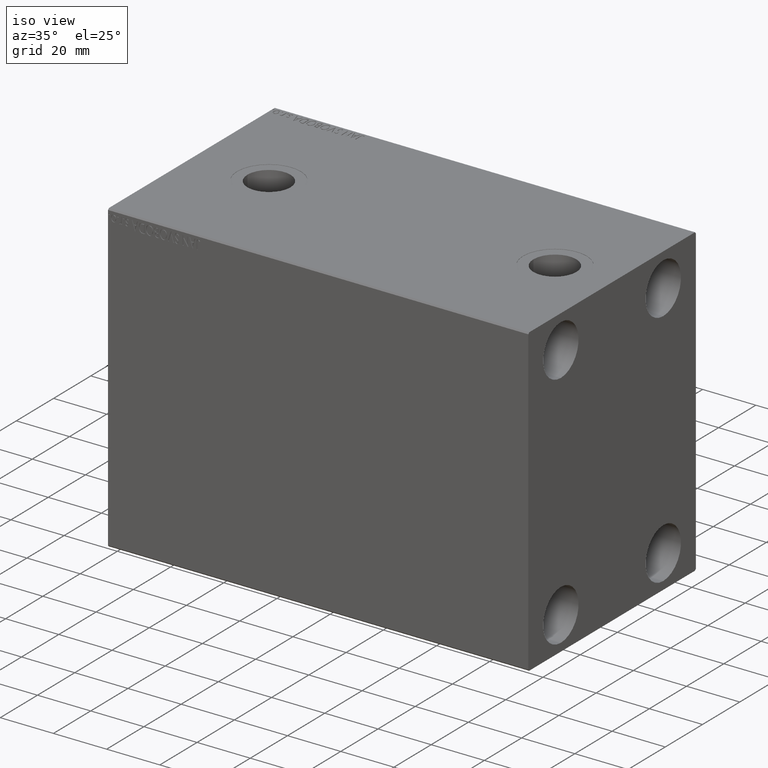
[diagram: clean part render]
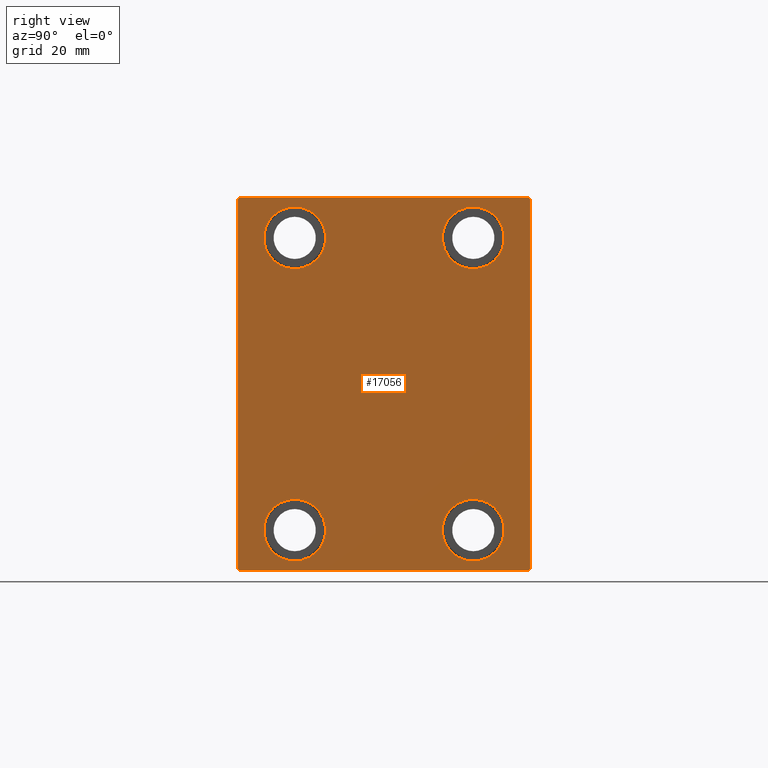
[diagram: tour spotlight — one face highlighted and labeled with its STEP entity id]
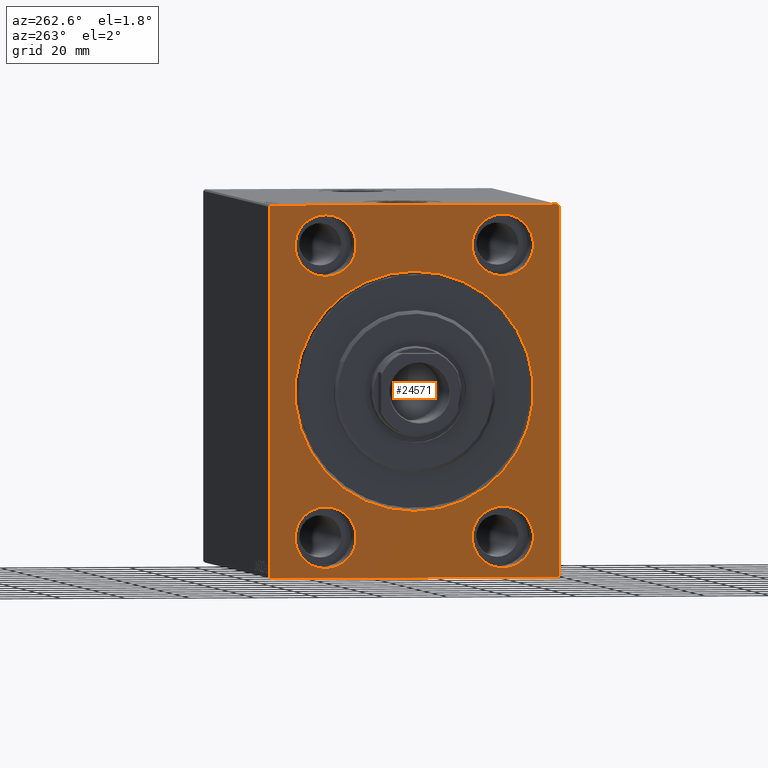
[diagram: tour spotlight — one face highlighted and labeled with its STEP entity id]
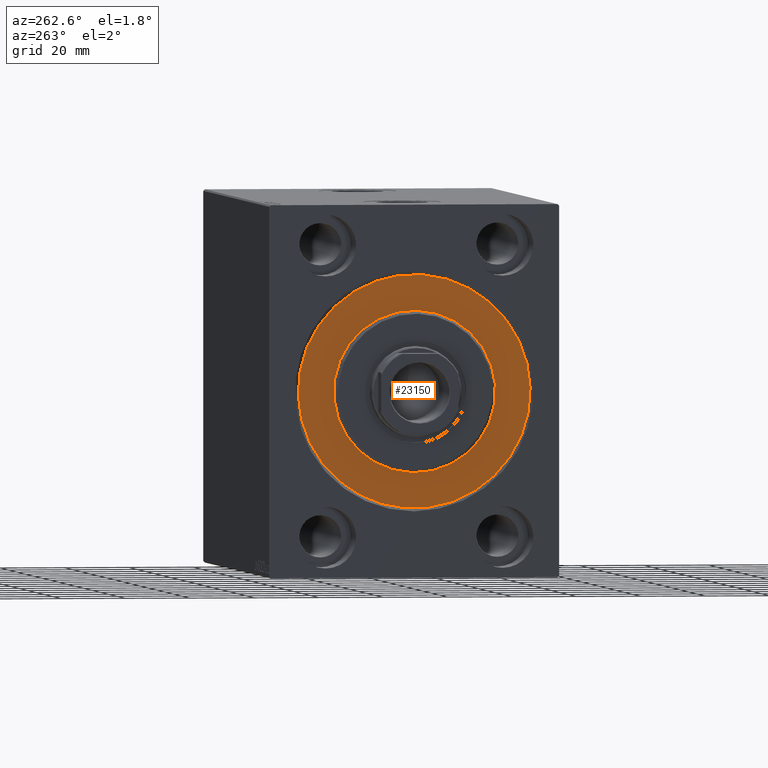
[diagram: tour spotlight — one face highlighted and labeled with its STEP entity id]
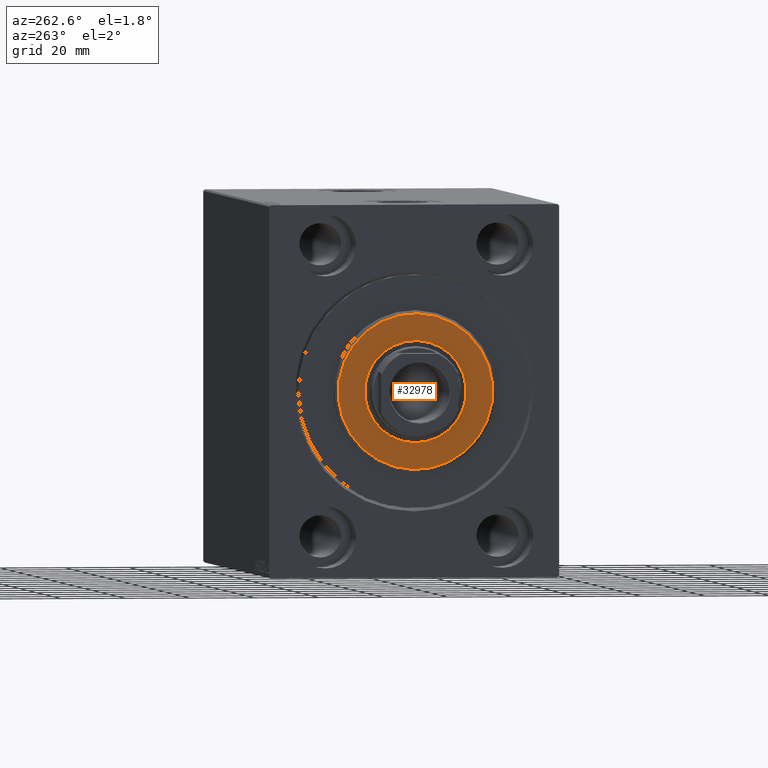
[diagram: tour spotlight — one face highlighted and labeled with its STEP entity id]
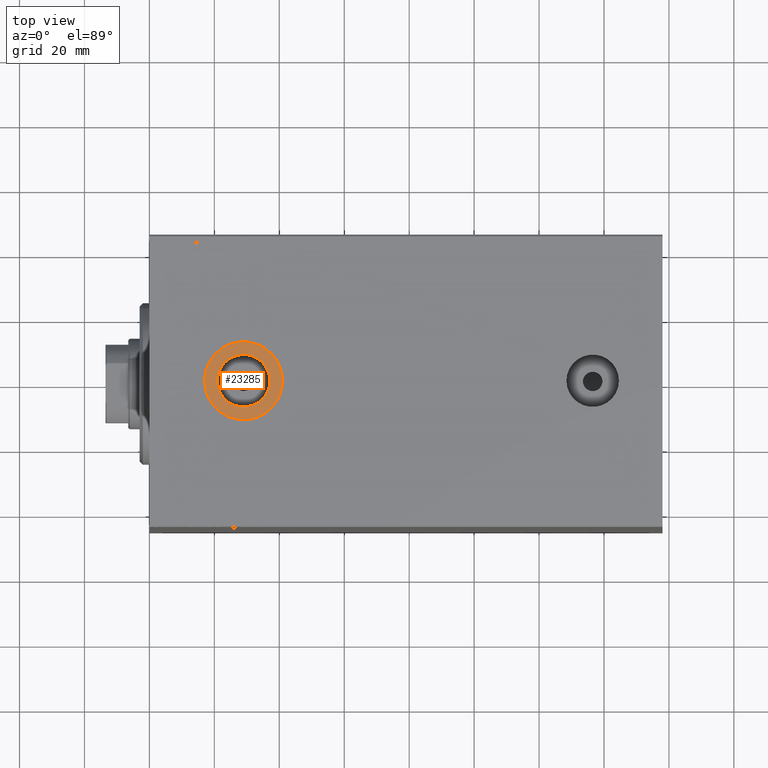
[diagram: tour spotlight — one face highlighted and labeled with its STEP entity id]
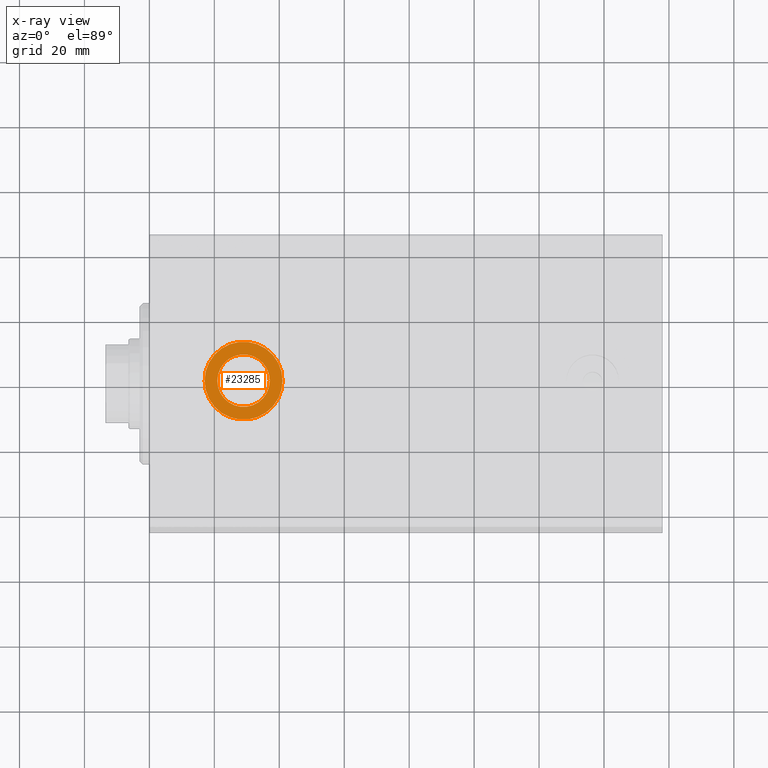
[diagram: x-ray of the same camera — body ghosted, this tour face saturated]
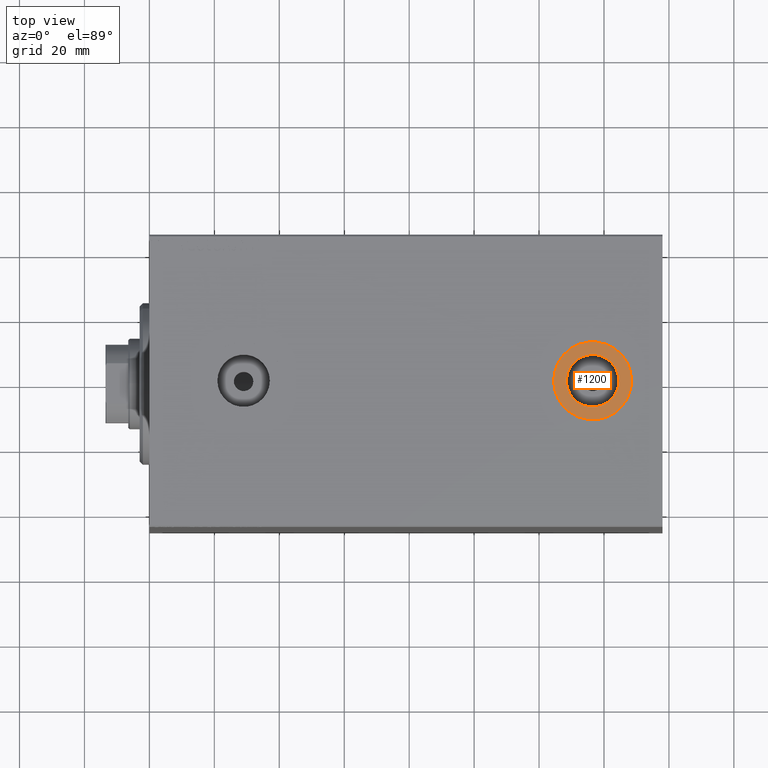
[diagram: tour spotlight — one face highlighted and labeled with its STEP entity id]
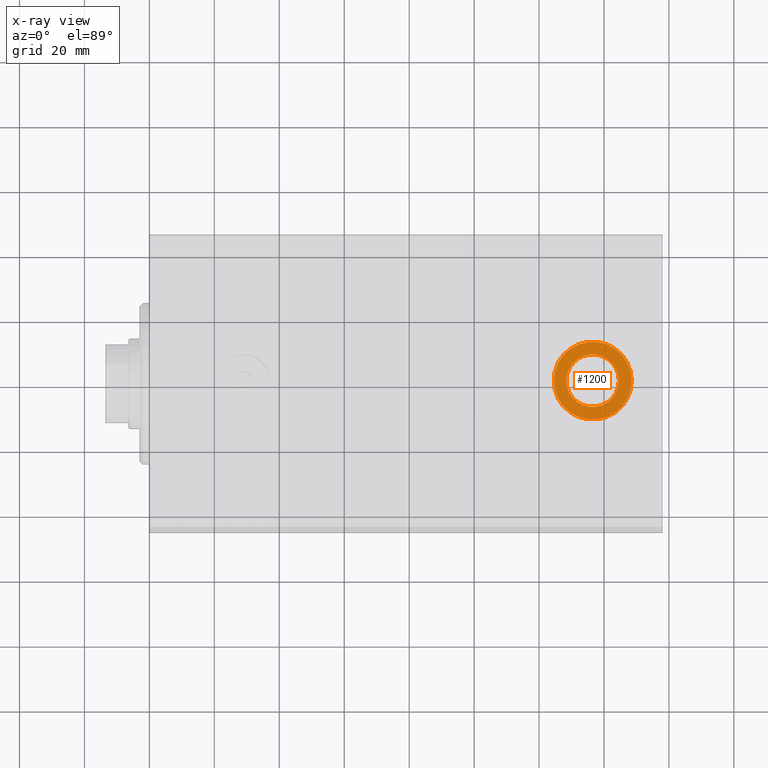
[diagram: x-ray of the same camera — body ghosted, this tour face saturated]
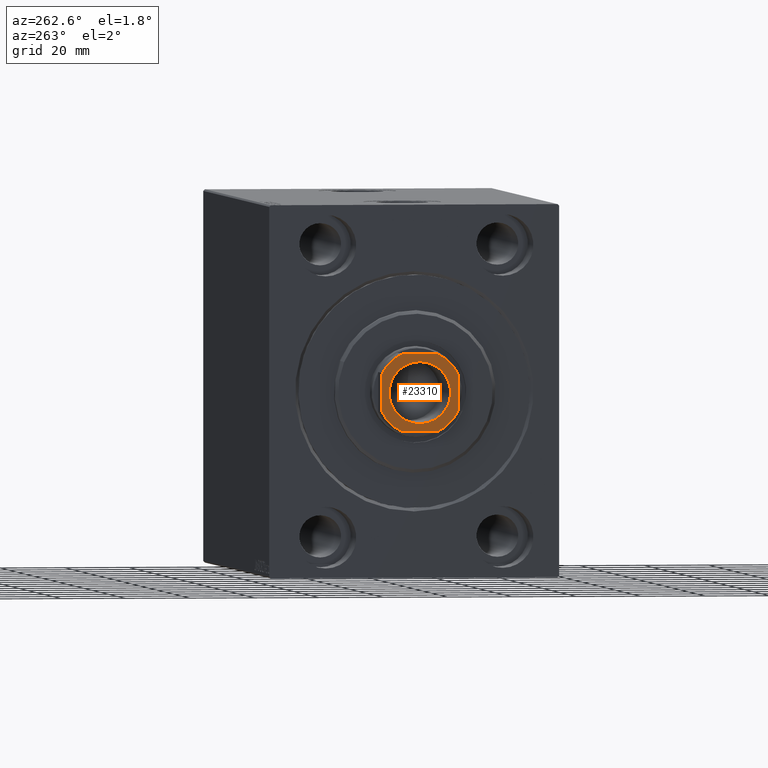
[diagram: tour spotlight — one face highlighted and labeled with its STEP entity id]
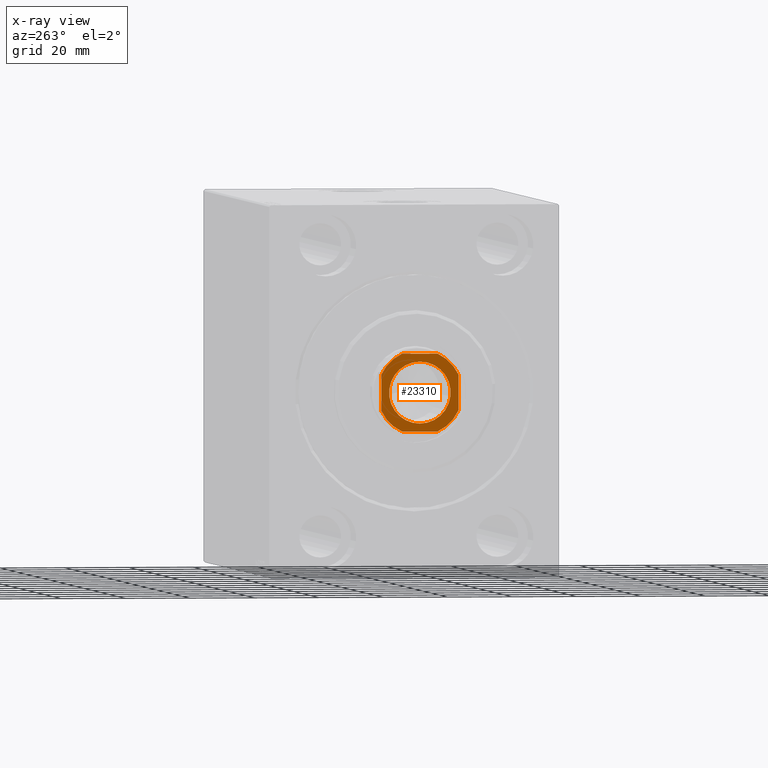
[diagram: x-ray of the same camera — body ghosted, this tour face saturated]
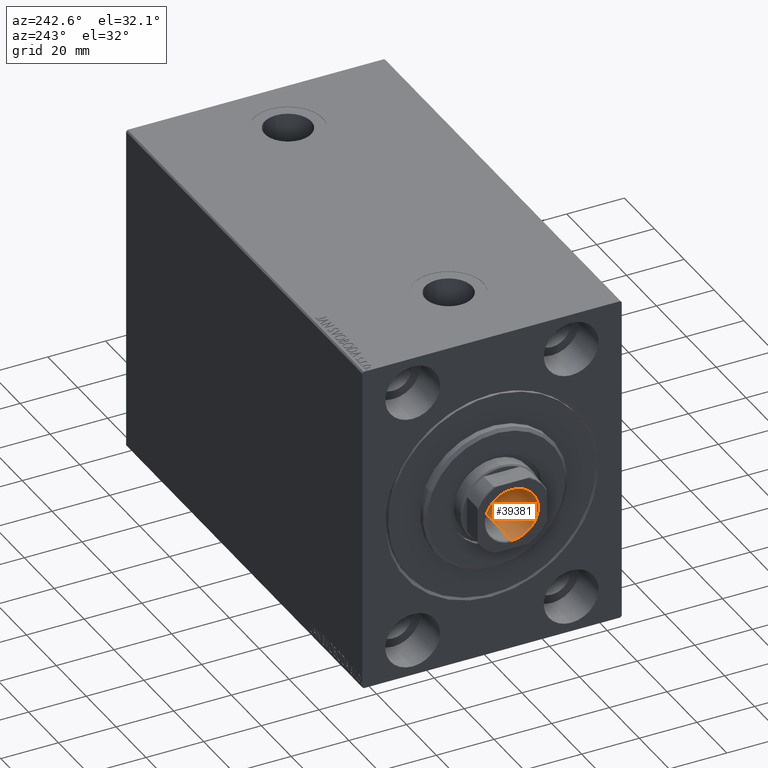
[diagram: tour spotlight — one face highlighted and labeled with its STEP entity id]
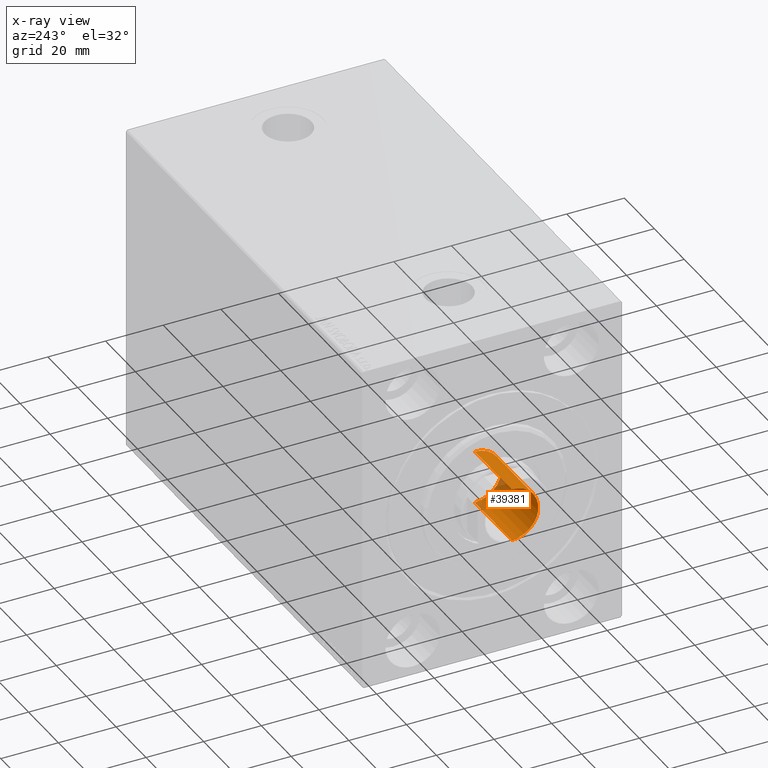
[diagram: x-ray of the same camera — body ghosted, this tour face saturated]
A machine part: a face-by-face anatomy tour. The part has 865 B-rep faces; the first image is the clean iso view, then the 8 largest visible faces are spotlighted one at a time (largest first), each with its STEP entity span.

Face 1 — right view, entity #17056. In plain terms, the highlighted planar face has unit normal (1, 0, 0).
Definition (entity closure, byte-faithful):
#109 = ORIENTED_EDGE ( 'NONE', *, *, #5401, .T. ) ;
#148 = FACE_BOUND ( 'NONE', #16474, .T. ) ;
#354 = CARTESIAN_POINT ( 'NONE',  ( 158.0000000000000000, 27.50000000000001066, 45.00000000000000711 ) ) ;
#840 = EDGE_LOOP ( 'NONE', ( #3613, #1363 ) ) ;
#1238 = EDGE_CURVE ( 'NONE', #10425, #37832, #36989, .T. ) ;
#1363 = ORIENTED_EDGE ( 'NONE', *, *, #34322, .T. ) ;
#1521 = CARTESIAN_POINT ( 'NONE',  ( 158.0000000000000000, -45.00000000000000000, -57.00000000000003553 ) ) ;
#2093 = VECTOR ( 'NONE', #6140, 1000.000000000000000 ) ;
#2180 = VERTEX_POINT ( 'NONE', #9171 ) ;
#3132 = ORIENTED_EDGE ( 'NONE', *, *, #36552, .T. ) ;
#3238 = CARTESIAN_POINT ( 'NONE',  ( 158.0000000000000000, -27.50000000000000000, -35.49999999999998579 ) ) ;
#3507 = ORIENTED_EDGE ( 'NONE', *, *, #18317, .T. ) ;
#3613 = ORIENTED_EDGE ( 'NONE', *, *, #40003, .T. ) ;
#3767 = EDGE_LOOP ( 'NONE', ( #31214, #3132 ) ) ;
#4545 = VERTEX_POINT ( 'NONE', #37495 ) ;
#4620 = CARTESIAN_POINT ( 'NONE',  ( 158.0000000000000000, 45.00000000000001421, -57.00000000000003553 ) ) ;
#4719 = DIRECTION ( 'NONE',  ( 0.000000000000000000, 0.000000000000000000, 1.000000000000000000 ) ) ;
#4842 = DIRECTION ( 'NONE',  ( -1.000000000000000000, -0.000000000000000000, -0.000000000000000000 ) ) ;
#4902 = CARTESIAN_POINT ( 'NONE',  ( 158.0000000000000000, -27.49999999999998934, 54.50000000000000711 ) ) ;
#4906 = ORIENTED_EDGE ( 'NONE', *, *, #13753, .T. ) ;
#5401 = EDGE_CURVE ( 'NONE', #10711, #41412, #28113, .T. ) ;
#5426 = LINE ( 'NONE', #19006, #29251 ) ;
#5538 = DIRECTION ( 'NONE',  ( 0.000000000000000000, -1.000000000000000000, -1.541976423090495387E-16 ) ) ;
#6140 = DIRECTION ( 'NONE',  ( 0.000000000000000000, -1.206764157201257045E-16, 1.000000000000000000 ) ) ;
#6153 = LINE ( 'NONE', #15762, #33019 ) ;
#6868 = CIRCLE ( 'NONE', #42482, 9.500000000000001776 ) ;
#6895 = CARTESIAN_POINT ( 'NONE',  ( 158.0000000000000000, 51.00000000000001421, -51.00000000000001421 ) ) ;
#7192 = CIRCLE ( 'NONE', #32803, 9.500000000000001776 ) ;
#7691 = DIRECTION ( 'NONE',  ( 0.000000000000000000, 0.000000000000000000, 1.000000000000000000 ) ) ;
#7845 = ORIENTED_EDGE ( 'NONE', *, *, #41501, .T. ) ;
#8668 = CARTESIAN_POINT ( 'NONE',  ( 158.0000000000000000, 27.49999999999998934, -44.99999999999998579 ) ) ;
#8807 = ORIENTED_EDGE ( 'NONE', *, *, #29869, .T. ) ;
#9001 = LINE ( 'NONE', #43546, #36276 ) ;
#9171 = CARTESIAN_POINT ( 'NONE',  ( 158.0000000000000000, 27.50000000000001066, 54.50000000000000711 ) ) ;
#9255 = CARTESIAN_POINT ( 'NONE',  ( 158.0000000000000000, -27.50000000000000000, -54.49999999999998579 ) ) ;
#9631 = ORIENTED_EDGE ( 'NONE', *, *, #13057, .T. ) ;
#9732 = EDGE_CURVE ( 'NONE', #24713, #30417, #14244, .T. ) ;
#10425 = VERTEX_POINT ( 'NONE', #17408 ) ;
#10711 = VERTEX_POINT ( 'NONE', #11768 ) ;
#11054 = FACE_OUTER_BOUND ( 'NONE', #13987, .T. ) ;
#11768 = CARTESIAN_POINT ( 'NONE',  ( 158.0000000000000000, 45.00000000000000000, 57.00000000000000711 ) ) ;
#12143 = CARTESIAN_POINT ( 'NONE',  ( 158.0000000000000000, -45.00000000000000000, 56.99999999999999289 ) ) ;
#12697 = VECTOR ( 'NONE', #5538, 1000.000000000000000 ) ;
#12767 = AXIS2_PLACEMENT_3D ( 'NONE', #35245, #42174, #4719 ) ;
#13057 = EDGE_CURVE ( 'NONE', #30417, #24713, #7192, .T. ) ;
#13558 = VERTEX_POINT ( 'NONE', #12143 ) ;
#13742 = DIRECTION ( 'NONE',  ( 1.000000000000000000, 0.000000000000000000, 0.000000000000000000 ) ) ;
#13753 = EDGE_CURVE ( 'NONE', #25191, #18896, #42103, .T. ) ;
#13887 = DIRECTION ( 'NONE',  ( -1.000000000000000000, -0.000000000000000000, -0.000000000000000000 ) ) ;
#13987 = EDGE_LOOP ( 'NONE', ( #16926, #41186, #29539, #3507, #7845, #35230, #25381, #109 ) ) ;
#14002 = DIRECTION ( 'NONE',  ( 0.000000000000000000, 0.000000000000000000, 1.000000000000000000 ) ) ;
#14244 = CIRCLE ( 'NONE', #42737, 9.500000000000001776 ) ;
#15515 = CARTESIAN_POINT ( 'NONE',  ( 158.0000000000000000, 27.49999999999998934, -44.99999999999998579 ) ) ;
#15674 = CIRCLE ( 'NONE', #41281, 9.500000000000001776 ) ;
#15762 = CARTESIAN_POINT ( 'NONE',  ( 158.0000000000000000, -45.00000000000000000, 57.49999999999999289 ) ) ;
#15970 = CARTESIAN_POINT ( 'NONE',  ( 158.0000000000000000, 45.00000000000001421, -57.50000000000000711 ) ) ;
#16474 = EDGE_LOOP ( 'NONE', ( #8807, #4906 ) ) ;
#16782 = CARTESIAN_POINT ( 'NONE',  ( 158.0000000000000000, -27.50000000000000000, -44.99999999999998579 ) ) ;
#16926 = ORIENTED_EDGE ( 'NONE', *, *, #39031, .T. ) ;
#16955 = CIRCLE ( 'NONE', #37615, 9.500000000000001776 ) ;
#17056 = ADVANCED_FACE ( 'NONE', ( #20410, #30666, #41599, #148, #11054 ), #20867, .T. ) ;
#17167 = AXIS2_PLACEMENT_3D ( 'NONE', #16782, #13887, #24139 ) ;
#17408 = CARTESIAN_POINT ( 'NONE',  ( 158.0000000000000000, 44.50000000000001421, -57.50000000000000711 ) ) ;
#17558 = CARTESIAN_POINT ( 'NONE',  ( 158.0000000000000000, -27.49999999999998934, 45.00000000000000711 ) ) ;
#17990 = CARTESIAN_POINT ( 'NONE',  ( 158.0000000000000000, -27.49999999999998934, 45.00000000000000711 ) ) ;
#18317 = EDGE_CURVE ( 'NONE', #26903, #23725, #23173, .T. ) ;
#18896 = VERTEX_POINT ( 'NONE', #9255 ) ;
#19006 = CARTESIAN_POINT ( 'NONE',  ( 158.0000000000000000, -51.00000000000000000, 51.00000000000000000 ) ) ;
#20410 = FACE_BOUND ( 'NONE', #3767, .T. ) ;
#20731 = ORIENTED_EDGE ( 'NONE', *, *, #9732, .T. ) ;
#20867 = PLANE ( 'NONE',  #25794 ) ;
#21703 = DIRECTION ( 'NONE',  ( -0.000000000000000000, 0.7071067811865474617, -0.7071067811865474617 ) ) ;
#21886 = VECTOR ( 'NONE', #26935, 1000.000000000000114 ) ;
#22044 = CARTESIAN_POINT ( 'NONE',  ( 158.0000000000000000, -44.50000000000002842, -57.50000000000000711 ) ) ;
#22776 = VERTEX_POINT ( 'NONE', #32281 ) ;
#23173 = LINE ( 'NONE', #36561, #34986 ) ;
#23725 = VERTEX_POINT ( 'NONE', #22044 ) ;
#24139 = DIRECTION ( 'NONE',  ( 0.000000000000000000, 0.000000000000000000, 1.000000000000000000 ) ) ;
#24430 = CARTESIAN_POINT ( 'NONE',  ( 158.0000000000000000, 0.000000000000000000, 0.000000000000000000 ) ) ;
#24661 = DIRECTION ( 'NONE',  ( 0.000000000000000000, 0.000000000000000000, 1.000000000000000000 ) ) ;
#24713 = VERTEX_POINT ( 'NONE', #4902 ) ;
#25104 = EDGE_CURVE ( 'NONE', #13558, #26903, #6153, .T. ) ;
#25191 = VERTEX_POINT ( 'NONE', #3238 ) ;
#25381 = ORIENTED_EDGE ( 'NONE', *, *, #37063, .T. ) ;
#25793 = DIRECTION ( 'NONE',  ( -1.000000000000000000, -0.000000000000000000, -0.000000000000000000 ) ) ;
#25794 = AXIS2_PLACEMENT_3D ( 'NONE', #24430, #13742, #40939 ) ;
#25913 = CARTESIAN_POINT ( 'NONE',  ( 158.0000000000000000, -27.49999999999998934, 35.50000000000000711 ) ) ;
#26903 = VERTEX_POINT ( 'NONE', #1521 ) ;
#26935 = DIRECTION ( 'NONE',  ( -0.000000000000000000, 0.7071067811865474617, 0.7071067811865474617 ) ) ;
#27340 = VERTEX_POINT ( 'NONE', #32828 ) ;
#27580 = DIRECTION ( 'NONE',  ( -1.000000000000000000, -0.000000000000000000, -0.000000000000000000 ) ) ;
#27746 = DIRECTION ( 'NONE',  ( -1.000000000000000000, -0.000000000000000000, -0.000000000000000000 ) ) ;
#28113 = LINE ( 'NONE', #34146, #35504 ) ;
#28722 = DIRECTION ( 'NONE',  ( 0.000000000000000000, 0.000000000000000000, 1.000000000000000000 ) ) ;
#29251 = VECTOR ( 'NONE', #32595, 1000.000000000000114 ) ;
#29335 = DIRECTION ( 'NONE',  ( 0.000000000000000000, 0.000000000000000000, -1.000000000000000000 ) ) ;
#29539 = ORIENTED_EDGE ( 'NONE', *, *, #25104, .T. ) ;
#29561 = DIRECTION ( 'NONE',  ( 0.000000000000000000, 0.000000000000000000, 1.000000000000000000 ) ) ;
#29869 = EDGE_CURVE ( 'NONE', #18896, #25191, #6868, .T. ) ;
#30417 = VERTEX_POINT ( 'NONE', #25913 ) ;
#30507 = EDGE_CURVE ( 'NONE', #4545, #13558, #5426, .T. ) ;
#30666 = FACE_BOUND ( 'NONE', #32473, .T. ) ;
#31214 = ORIENTED_EDGE ( 'NONE', *, *, #43491, .T. ) ;
#32281 = CARTESIAN_POINT ( 'NONE',  ( 158.0000000000000000, 27.50000000000001066, 35.50000000000000711 ) ) ;
#32291 = DIRECTION ( 'NONE',  ( -1.000000000000000000, -0.000000000000000000, -0.000000000000000000 ) ) ;
#32473 = EDGE_LOOP ( 'NONE', ( #9631, #20731 ) ) ;
#32595 = DIRECTION ( 'NONE',  ( 0.000000000000000000, -0.7071067811865474617, -0.7071067811865474617 ) ) ;
#32673 = LINE ( 'NONE', #15970, #2093 ) ;
#32696 = CARTESIAN_POINT ( 'NONE',  ( 158.0000000000000000, -27.50000000000000000, -44.99999999999998579 ) ) ;
#32803 = AXIS2_PLACEMENT_3D ( 'NONE', #17990, #4842, #41845 ) ;
#32828 = CARTESIAN_POINT ( 'NONE',  ( 158.0000000000000000, 27.49999999999998934, -35.49999999999998579 ) ) ;
#33019 = VECTOR ( 'NONE', #29335, 1000.000000000000000 ) ;
#33148 = LINE ( 'NONE', #43191, #12697 ) ;
#33989 = CIRCLE ( 'NONE', #35546, 9.500000000000001776 ) ;
#34146 = CARTESIAN_POINT ( 'NONE',  ( 158.0000000000000000, 51.00000000000001421, 51.00000000000001421 ) ) ;
#34322 = EDGE_CURVE ( 'NONE', #2180, #22776, #16955, .T. ) ;
#34684 = CARTESIAN_POINT ( 'NONE',  ( 158.0000000000000000, 44.50000000000002842, 57.50000000000000711 ) ) ;
#34986 = VECTOR ( 'NONE', #21703, 1000.000000000000114 ) ;
#35230 = ORIENTED_EDGE ( 'NONE', *, *, #1238, .T. ) ;
#35245 = CARTESIAN_POINT ( 'NONE',  ( 158.0000000000000000, 27.50000000000001066, 45.00000000000000711 ) ) ;
#35504 = VECTOR ( 'NONE', #37503, 1000.000000000000114 ) ;
#35546 = AXIS2_PLACEMENT_3D ( 'NONE', #8668, #32291, #28722 ) ;
#35860 = CARTESIAN_POINT ( 'NONE',  ( 158.0000000000000000, 27.49999999999998934, -54.49999999999998579 ) ) ;
#36276 = VECTOR ( 'NONE', #43327, 1000.000000000000000 ) ;
#36552 = EDGE_CURVE ( 'NONE', #27340, #43161, #33989, .T. ) ;
#36561 = CARTESIAN_POINT ( 'NONE',  ( 158.0000000000000000, -51.00000000000001421, -51.00000000000001421 ) ) ;
#36936 = CIRCLE ( 'NONE', #12767, 9.500000000000001776 ) ;
#36989 = LINE ( 'NONE', #6895, #21886 ) ;
#37063 = EDGE_CURVE ( 'NONE', #37832, #10711, #32673, .T. ) ;
#37495 = CARTESIAN_POINT ( 'NONE',  ( 158.0000000000000000, -44.49999999999997158, 57.49999999999999289 ) ) ;
#37503 = DIRECTION ( 'NONE',  ( -0.000000000000000000, -0.7071067811865474617, 0.7071067811865474617 ) ) ;
#37615 = AXIS2_PLACEMENT_3D ( 'NONE', #354, #27746, #7691 ) ;
#37832 = VERTEX_POINT ( 'NONE', #4620 ) ;
#39031 = EDGE_CURVE ( 'NONE', #41412, #4545, #33148, .T. ) ;
#40003 = EDGE_CURVE ( 'NONE', #22776, #2180, #36936, .T. ) ;
#40939 = DIRECTION ( 'NONE',  ( 0.000000000000000000, 0.000000000000000000, -1.000000000000000000 ) ) ;
#41186 = ORIENTED_EDGE ( 'NONE', *, *, #30507, .T. ) ;
#41281 = AXIS2_PLACEMENT_3D ( 'NONE', #15515, #41616, #24661 ) ;
#41412 = VERTEX_POINT ( 'NONE', #34684 ) ;
#41501 = EDGE_CURVE ( 'NONE', #23725, #10425, #9001, .T. ) ;
#41599 = FACE_BOUND ( 'NONE', #840, .T. ) ;
#41616 = DIRECTION ( 'NONE',  ( -1.000000000000000000, -0.000000000000000000, -0.000000000000000000 ) ) ;
#41845 = DIRECTION ( 'NONE',  ( 0.000000000000000000, 0.000000000000000000, 1.000000000000000000 ) ) ;
#42103 = CIRCLE ( 'NONE', #17167, 9.500000000000001776 ) ;
#42174 = DIRECTION ( 'NONE',  ( -1.000000000000000000, -0.000000000000000000, -0.000000000000000000 ) ) ;
#42482 = AXIS2_PLACEMENT_3D ( 'NONE', #32696, #25793, #29561 ) ;
#42737 = AXIS2_PLACEMENT_3D ( 'NONE', #17558, #27580, #14002 ) ;
#43161 = VERTEX_POINT ( 'NONE', #35860 ) ;
#43191 = CARTESIAN_POINT ( 'NONE',  ( 158.0000000000000000, 45.00000000000000000, 57.50000000000000711 ) ) ;
#43327 = DIRECTION ( 'NONE',  ( 0.000000000000000000, 1.000000000000000000, 0.000000000000000000 ) ) ;
#43491 = EDGE_CURVE ( 'NONE', #43161, #27340, #15674, .T. ) ;
#43546 = CARTESIAN_POINT ( 'NONE',  ( 158.0000000000000000, -45.00000000000000000, -57.50000000000000711 ) ) ;

Face 2 — auxiliary view, entity #24571. In plain terms, the highlighted planar face has unit normal (1, 0, 0).
Definition (entity closure, byte-faithful):
#147 = VECTOR ( 'NONE', #24982, 1000.000000000000000 ) ;
#218 = CIRCLE ( 'NONE', #32155, 9.500000000000001776 ) ;
#650 = DIRECTION ( 'NONE',  ( -0.000000000000000000, 0.7071067811865474617, 0.7071067811865474617 ) ) ;
#675 = FACE_OUTER_BOUND ( 'NONE', #21264, .T. ) ;
#855 = DIRECTION ( 'NONE',  ( 0.000000000000000000, 0.000000000000000000, -1.000000000000000000 ) ) ;
#953 = VECTOR ( 'NONE', #650, 1000.000000000000114 ) ;
#1277 = VERTEX_POINT ( 'NONE', #24937 ) ;
#1579 = DIRECTION ( 'NONE',  ( 0.000000000000000000, 0.000000000000000000, 1.000000000000000000 ) ) ;
#1654 = AXIS2_PLACEMENT_3D ( 'NONE', #42329, #35852, #11998 ) ;
#1723 = ORIENTED_EDGE ( 'NONE', *, *, #15812, .F. ) ;
#2326 = AXIS2_PLACEMENT_3D ( 'NONE', #8932, #18753, #25420 ) ;
#2434 = DIRECTION ( 'NONE',  ( -1.000000000000000000, 0.000000000000000000, 0.000000000000000000 ) ) ;
#3424 = CARTESIAN_POINT ( 'NONE',  ( 0.000000000000000000, -45.00000000000000000, -57.50000000000000711 ) ) ;
#3721 = AXIS2_PLACEMENT_3D ( 'NONE', #27704, #30607, #30380 ) ;
#3773 = EDGE_CURVE ( 'NONE', #31141, #40479, #12688, .T. ) ;
#4239 = FACE_BOUND ( 'NONE', #34076, .T. ) ;
#4331 = LINE ( 'NONE', #7233, #37599 ) ;
#4367 = EDGE_CURVE ( 'NONE', #17715, #1277, #4331, .T. ) ;
#4462 = VERTEX_POINT ( 'NONE', #23032 ) ;
#4468 = DIRECTION ( 'NONE',  ( 1.000000000000000000, 0.000000000000000000, 0.000000000000000000 ) ) ;
#4486 = CARTESIAN_POINT ( 'NONE',  ( 0.000000000000000000, 27.50000000000001066, 45.00000000000000711 ) ) ;
#5150 = LINE ( 'NONE', #24752, #147 ) ;
#5168 = CIRCLE ( 'NONE', #3721, 37.00000000000003553 ) ;
#5544 = VECTOR ( 'NONE', #6656, 1000.000000000000000 ) ;
#5861 = CIRCLE ( 'NONE', #36451, 9.500000000000001776 ) ;
#6313 = ORIENTED_EDGE ( 'NONE', *, *, #9811, .T. ) ;
#6357 = VECTOR ( 'NONE', #38332, 1000.000000000000114 ) ;
#6656 = DIRECTION ( 'NONE',  ( 0.000000000000000000, -1.206764157201257045E-16, 1.000000000000000000 ) ) ;
#6777 = CARTESIAN_POINT ( 'NONE',  ( 0.000000000000000000, -45.00000000000000000, 56.99999999999999289 ) ) ;
#7233 = CARTESIAN_POINT ( 'NONE',  ( 0.000000000000000000, -44.50000000000002842, -57.50000000000000711 ) ) ;
#7238 = CARTESIAN_POINT ( 'NONE',  ( 0.000000000000000000, 27.49999999999998934, -44.99999999999998579 ) ) ;
#7563 = CARTESIAN_POINT ( 'NONE',  ( 0.000000000000000000, 27.49999999999998934, -54.49999999999998579 ) ) ;
#7721 = CARTESIAN_POINT ( 'NONE',  ( 0.000000000000000000, -27.50000000000000000, -35.49999999999998579 ) ) ;
#7798 = DIRECTION ( 'NONE',  ( 0.000000000000000000, 0.000000000000000000, -1.000000000000000000 ) ) ;
#8073 = AXIS2_PLACEMENT_3D ( 'NONE', #9982, #2434, #29600 ) ;
#8195 = DIRECTION ( 'NONE',  ( -1.000000000000000000, 0.000000000000000000, 0.000000000000000000 ) ) ;
#8199 = ORIENTED_EDGE ( 'NONE', *, *, #21145, .F. ) ;
#8372 = EDGE_LOOP ( 'NONE', ( #1723, #16695 ) ) ;
#8488 = CARTESIAN_POINT ( 'NONE',  ( 0.000000000000000000, 27.50000000000001066, 35.50000000000000711 ) ) ;
#8932 = CARTESIAN_POINT ( 'NONE',  ( 0.000000000000000000, 27.50000000000001066, 45.00000000000000711 ) ) ;
#9036 = DIRECTION ( 'NONE',  ( -1.000000000000000000, 0.000000000000000000, 0.000000000000000000 ) ) ;
#9752 = EDGE_CURVE ( 'NONE', #21884, #1277, #10888, .T. ) ;
#9811 = EDGE_CURVE ( 'NONE', #34942, #33481, #35596, .T. ) ;
#9982 = CARTESIAN_POINT ( 'NONE',  ( 0.000000000000000000, -27.49999999999998934, 45.00000000000000711 ) ) ;
#9998 = EDGE_CURVE ( 'NONE', #4462, #40479, #25797, .T. ) ;
#10044 = ORIENTED_EDGE ( 'NONE', *, *, #20353, .F. ) ;
#10708 = FACE_BOUND ( 'NONE', #27939, .T. ) ;
#10876 = AXIS2_PLACEMENT_3D ( 'NONE', #30172, #13236, #23493 ) ;
#10888 = LINE ( 'NONE', #34501, #18522 ) ;
#11143 = FACE_BOUND ( 'NONE', #11541, .T. ) ;
#11329 = DIRECTION ( 'NONE',  ( 0.000000000000000000, 0.000000000000000000, 1.000000000000000000 ) ) ;
#11541 = EDGE_LOOP ( 'NONE', ( #30939, #31680 ) ) ;
#11923 = VERTEX_POINT ( 'NONE', #7563 ) ;
#11998 = DIRECTION ( 'NONE',  ( 0.000000000000000000, 0.000000000000000000, 1.000000000000000000 ) ) ;
#12036 = ORIENTED_EDGE ( 'NONE', *, *, #22492, .T. ) ;
#12251 = CIRCLE ( 'NONE', #24333, 9.500000000000001776 ) ;
#12409 = VERTEX_POINT ( 'NONE', #20381 ) ;
#12688 = LINE ( 'NONE', #23590, #5544 ) ;
#13236 = DIRECTION ( 'NONE',  ( -1.000000000000000000, 0.000000000000000000, 0.000000000000000000 ) ) ;
#13694 = VECTOR ( 'NONE', #17239, 1000.000000000000000 ) ;
#14241 = CARTESIAN_POINT ( 'NONE',  ( 0.000000000000000000, -45.00000000000000000, 56.99999999999999289 ) ) ;
#14304 = VERTEX_POINT ( 'NONE', #32467 ) ;
#14705 = FACE_BOUND ( 'NONE', #8372, .T. ) ;
#15461 = CARTESIAN_POINT ( 'NONE',  ( 0.000000000000000000, -27.49999999999998934, 54.50000000000000711 ) ) ;
#15664 = VERTEX_POINT ( 'NONE', #24749 ) ;
#15668 = AXIS2_PLACEMENT_3D ( 'NONE', #35378, #18890, #38293 ) ;
#15812 = EDGE_CURVE ( 'NONE', #17972, #20069, #12251, .T. ) ;
#15849 = CIRCLE ( 'NONE', #2326, 9.500000000000001776 ) ;
#15931 = ORIENTED_EDGE ( 'NONE', *, *, #3773, .F. ) ;
#16417 = EDGE_CURVE ( 'NONE', #33481, #34942, #5168, .T. ) ;
#16695 = ORIENTED_EDGE ( 'NONE', *, *, #22368, .F. ) ;
#17239 = DIRECTION ( 'NONE',  ( 0.000000000000000000, 1.000000000000000000, 0.000000000000000000 ) ) ;
#17597 = FACE_BOUND ( 'NONE', #36130, .T. ) ;
#17694 = DIRECTION ( 'NONE',  ( 0.000000000000000000, 0.000000000000000000, 1.000000000000000000 ) ) ;
#17715 = VERTEX_POINT ( 'NONE', #42764 ) ;
#17972 = VERTEX_POINT ( 'NONE', #21084 ) ;
#18129 = EDGE_CURVE ( 'NONE', #11923, #14304, #22271, .T. ) ;
#18501 = ORIENTED_EDGE ( 'NONE', *, *, #41074, .T. ) ;
#18522 = VECTOR ( 'NONE', #855, 1000.000000000000000 ) ;
#18753 = DIRECTION ( 'NONE',  ( -1.000000000000000000, 0.000000000000000000, 0.000000000000000000 ) ) ;
#18872 = EDGE_CURVE ( 'NONE', #43497, #22713, #38663, .T. ) ;
#18890 = DIRECTION ( 'NONE',  ( 1.000000000000000000, 0.000000000000000000, 0.000000000000000000 ) ) ;
#19102 = EDGE_CURVE ( 'NONE', #14304, #11923, #218, .T. ) ;
#20069 = VERTEX_POINT ( 'NONE', #8488 ) ;
#20229 = ORIENTED_EDGE ( 'NONE', *, *, #4367, .T. ) ;
#20353 = EDGE_CURVE ( 'NONE', #4462, #43118, #5150, .T. ) ;
#20381 = CARTESIAN_POINT ( 'NONE',  ( 0.000000000000000000, -27.49999999999998934, 35.50000000000000711 ) ) ;
#20754 = EDGE_CURVE ( 'NONE', #22713, #43497, #5861, .T. ) ;
#21084 = CARTESIAN_POINT ( 'NONE',  ( 0.000000000000000000, 27.50000000000001066, 54.50000000000000711 ) ) ;
#21145 = EDGE_CURVE ( 'NONE', #17715, #15664, #40655, .T. ) ;
#21155 = CARTESIAN_POINT ( 'NONE',  ( 0.000000000000000000, 45.00000000000001421, -57.00000000000003553 ) ) ;
#21264 = EDGE_LOOP ( 'NONE', ( #41340, #12036, #10044, #35632, #15931, #18501, #8199, #20229 ) ) ;
#21391 = PLANE ( 'NONE',  #35109 ) ;
#21562 = CIRCLE ( 'NONE', #1654, 9.500000000000001776 ) ;
#21884 = VERTEX_POINT ( 'NONE', #6777 ) ;
#22271 = CIRCLE ( 'NONE', #10876, 9.500000000000001776 ) ;
#22281 = ORIENTED_EDGE ( 'NONE', *, *, #22666, .F. ) ;
#22368 = EDGE_CURVE ( 'NONE', #20069, #17972, #15849, .T. ) ;
#22492 = EDGE_CURVE ( 'NONE', #21884, #43118, #38092, .T. ) ;
#22666 = EDGE_CURVE ( 'NONE', #42673, #12409, #21562, .T. ) ;
#22713 = VERTEX_POINT ( 'NONE', #32056 ) ;
#23032 = CARTESIAN_POINT ( 'NONE',  ( 0.000000000000000000, 44.50000000000002842, 57.50000000000000711 ) ) ;
#23106 = DIRECTION ( 'NONE',  ( -0.000000000000000000, 0.7071067811865474617, -0.7071067811865474617 ) ) ;
#23493 = DIRECTION ( 'NONE',  ( 0.000000000000000000, 0.000000000000000000, 1.000000000000000000 ) ) ;
#23590 = CARTESIAN_POINT ( 'NONE',  ( 0.000000000000000000, 45.00000000000001421, -57.50000000000000711 ) ) ;
#24333 = AXIS2_PLACEMENT_3D ( 'NONE', #4486, #32098, #1579 ) ;
#24571 = ADVANCED_FACE ( 'NONE', ( #17597, #11143, #4239, #14705, #10708, #675 ), #21391, .F. ) ;
#24749 = CARTESIAN_POINT ( 'NONE',  ( 0.000000000000000000, 44.50000000000001421, -57.50000000000000711 ) ) ;
#24752 = CARTESIAN_POINT ( 'NONE',  ( 0.000000000000000000, 45.00000000000000000, 57.50000000000000711 ) ) ;
#24844 = EDGE_CURVE ( 'NONE', #12409, #42673, #27265, .T. ) ;
#24937 = CARTESIAN_POINT ( 'NONE',  ( 0.000000000000000000, -45.00000000000000000, -57.00000000000003553 ) ) ;
#24982 = DIRECTION ( 'NONE',  ( 0.000000000000000000, -1.000000000000000000, -1.541976423090495387E-16 ) ) ;
#25420 = DIRECTION ( 'NONE',  ( 0.000000000000000000, 0.000000000000000000, 1.000000000000000000 ) ) ;
#25797 = LINE ( 'NONE', #36917, #32736 ) ;
#26445 = AXIS2_PLACEMENT_3D ( 'NONE', #42937, #9036, #43145 ) ;
#27265 = CIRCLE ( 'NONE', #8073, 9.500000000000001776 ) ;
#27704 = CARTESIAN_POINT ( 'NONE',  ( 0.000000000000000000, 0.000000000000000000, 0.000000000000000000 ) ) ;
#27939 = EDGE_LOOP ( 'NONE', ( #29609, #28940 ) ) ;
#28940 = ORIENTED_EDGE ( 'NONE', *, *, #20754, .F. ) ;
#29192 = CARTESIAN_POINT ( 'NONE',  ( 0.000000000000000000, 0.000000000000000000, 37.00000000000003553 ) ) ;
#29600 = DIRECTION ( 'NONE',  ( 0.000000000000000000, 0.000000000000000000, 1.000000000000000000 ) ) ;
#29609 = ORIENTED_EDGE ( 'NONE', *, *, #18872, .F. ) ;
#30172 = CARTESIAN_POINT ( 'NONE',  ( 0.000000000000000000, 27.49999999999998934, -44.99999999999998579 ) ) ;
#30380 = DIRECTION ( 'NONE',  ( 0.000000000000000000, 0.000000000000000000, -1.000000000000000000 ) ) ;
#30607 = DIRECTION ( 'NONE',  ( 1.000000000000000000, 0.000000000000000000, 0.000000000000000000 ) ) ;
#30939 = ORIENTED_EDGE ( 'NONE', *, *, #19102, .F. ) ;
#31141 = VERTEX_POINT ( 'NONE', #34577 ) ;
#31680 = ORIENTED_EDGE ( 'NONE', *, *, #18129, .F. ) ;
#32017 = ORIENTED_EDGE ( 'NONE', *, *, #16417, .T. ) ;
#32056 = CARTESIAN_POINT ( 'NONE',  ( 0.000000000000000000, -27.50000000000000000, -54.49999999999998579 ) ) ;
#32098 = DIRECTION ( 'NONE',  ( -1.000000000000000000, 0.000000000000000000, 0.000000000000000000 ) ) ;
#32155 = AXIS2_PLACEMENT_3D ( 'NONE', #7238, #41341, #17694 ) ;
#32467 = CARTESIAN_POINT ( 'NONE',  ( 0.000000000000000000, 27.49999999999998934, -35.49999999999998579 ) ) ;
#32736 = VECTOR ( 'NONE', #23106, 1000.000000000000114 ) ;
#33481 = VERTEX_POINT ( 'NONE', #39006 ) ;
#34054 = ORIENTED_EDGE ( 'NONE', *, *, #24844, .F. ) ;
#34076 = EDGE_LOOP ( 'NONE', ( #22281, #34054 ) ) ;
#34409 = DIRECTION ( 'NONE',  ( -0.000000000000000000, -0.7071067811865474617, 0.7071067811865474617 ) ) ;
#34501 = CARTESIAN_POINT ( 'NONE',  ( 0.000000000000000000, -45.00000000000000000, 57.49999999999999289 ) ) ;
#34577 = CARTESIAN_POINT ( 'NONE',  ( 0.000000000000000000, 45.00000000000001421, -57.00000000000003553 ) ) ;
#34942 = VERTEX_POINT ( 'NONE', #29192 ) ;
#35109 = AXIS2_PLACEMENT_3D ( 'NONE', #41246, #4468, #7798 ) ;
#35378 = CARTESIAN_POINT ( 'NONE',  ( 0.000000000000000000, 0.000000000000000000, 0.000000000000000000 ) ) ;
#35413 = LINE ( 'NONE', #21155, #6357 ) ;
#35596 = CIRCLE ( 'NONE', #15668, 37.00000000000003553 ) ;
#35632 = ORIENTED_EDGE ( 'NONE', *, *, #9998, .T. ) ;
#35852 = DIRECTION ( 'NONE',  ( -1.000000000000000000, 0.000000000000000000, 0.000000000000000000 ) ) ;
#36130 = EDGE_LOOP ( 'NONE', ( #6313, #32017 ) ) ;
#36451 = AXIS2_PLACEMENT_3D ( 'NONE', #41428, #8195, #11329 ) ;
#36917 = CARTESIAN_POINT ( 'NONE',  ( 0.000000000000000000, 44.50000000000002842, 57.50000000000000711 ) ) ;
#37599 = VECTOR ( 'NONE', #34409, 1000.000000000000114 ) ;
#37884 = CARTESIAN_POINT ( 'NONE',  ( 0.000000000000000000, -44.49999999999997158, 57.49999999999999289 ) ) ;
#38092 = LINE ( 'NONE', #14241, #953 ) ;
#38293 = DIRECTION ( 'NONE',  ( 0.000000000000000000, 0.000000000000000000, -1.000000000000000000 ) ) ;
#38332 = DIRECTION ( 'NONE',  ( 0.000000000000000000, -0.7071067811865474617, -0.7071067811865474617 ) ) ;
#38663 = CIRCLE ( 'NONE', #26445, 9.500000000000001776 ) ;
#39006 = CARTESIAN_POINT ( 'NONE',  ( 0.000000000000000000, 4.531193156845210737E-15, -37.00000000000003553 ) ) ;
#40479 = VERTEX_POINT ( 'NONE', #41342 ) ;
#40655 = LINE ( 'NONE', #3424, #13694 ) ;
#41074 = EDGE_CURVE ( 'NONE', #31141, #15664, #35413, .T. ) ;
#41246 = CARTESIAN_POINT ( 'NONE',  ( 0.000000000000000000, 0.000000000000000000, 0.000000000000000000 ) ) ;
#41340 = ORIENTED_EDGE ( 'NONE', *, *, #9752, .F. ) ;
#41341 = DIRECTION ( 'NONE',  ( -1.000000000000000000, 0.000000000000000000, 0.000000000000000000 ) ) ;
#41342 = CARTESIAN_POINT ( 'NONE',  ( 0.000000000000000000, 45.00000000000000000, 57.00000000000000711 ) ) ;
#41428 = CARTESIAN_POINT ( 'NONE',  ( 0.000000000000000000, -27.50000000000000000, -44.99999999999998579 ) ) ;
#42329 = CARTESIAN_POINT ( 'NONE',  ( 0.000000000000000000, -27.49999999999998934, 45.00000000000000711 ) ) ;
#42673 = VERTEX_POINT ( 'NONE', #15461 ) ;
#42764 = CARTESIAN_POINT ( 'NONE',  ( 0.000000000000000000, -44.50000000000002842, -57.50000000000000711 ) ) ;
#42937 = CARTESIAN_POINT ( 'NONE',  ( 0.000000000000000000, -27.50000000000000000, -44.99999999999998579 ) ) ;
#43118 = VERTEX_POINT ( 'NONE', #37884 ) ;
#43145 = DIRECTION ( 'NONE',  ( 0.000000000000000000, 0.000000000000000000, 1.000000000000000000 ) ) ;
#43497 = VERTEX_POINT ( 'NONE', #7721 ) ;

Face 3 — auxiliary view, entity #23150. In plain terms, the highlighted planar face has unit normal (1, 0, -0).
Definition (entity closure, byte-faithful):
#81 = CARTESIAN_POINT ( 'NONE',  ( 0.000000000000000000, 0.000000000000000000, 0.000000000000000000 ) ) ;
#382 = FACE_BOUND ( 'NONE', #9504, .T. ) ;
#1358 = VERTEX_POINT ( 'NONE', #38976 ) ;
#3156 = VERTEX_POINT ( 'NONE', #10431 ) ;
#3732 = DIRECTION ( 'NONE',  ( -1.000000000000000000, 0.000000000000000000, 0.000000000000000000 ) ) ;
#4977 = CIRCLE ( 'NONE', #26300, 36.00000000000000000 ) ;
#5225 = AXIS2_PLACEMENT_3D ( 'NONE', #20212, #10633, #20883 ) ;
#6334 = VERTEX_POINT ( 'NONE', #39598 ) ;
#7437 = DIRECTION ( 'NONE',  ( 0.000000000000000000, 0.000000000000000000, -1.000000000000000000 ) ) ;
#8494 = EDGE_CURVE ( 'NONE', #1358, #6334, #4977, .T. ) ;
#9174 = CIRCLE ( 'NONE', #14863, 25.00000000000000000 ) ;
#9504 = EDGE_LOOP ( 'NONE', ( #42365, #27631 ) ) ;
#10431 = CARTESIAN_POINT ( 'NONE',  ( 0.000000000000000000, 3.061616997868383043E-15, -25.00000000000000000 ) ) ;
#10633 = DIRECTION ( 'NONE',  ( -1.000000000000000000, 0.000000000000000000, 0.000000000000000000 ) ) ;
#11761 = CARTESIAN_POINT ( 'NONE',  ( 0.000000000000000000, 0.000000000000000000, 0.000000000000000000 ) ) ;
#12208 = EDGE_LOOP ( 'NONE', ( #14064, #31781 ) ) ;
#12321 = CARTESIAN_POINT ( 'NONE',  ( 0.000000000000000000, 0.000000000000000000, 25.00000000000000000 ) ) ;
#13333 = CARTESIAN_POINT ( 'NONE',  ( 0.000000000000000000, 0.000000000000000000, 0.000000000000000000 ) ) ;
#13426 = AXIS2_PLACEMENT_3D ( 'NONE', #81, #37975, #7437 ) ;
#14064 = ORIENTED_EDGE ( 'NONE', *, *, #8494, .F. ) ;
#14446 = DIRECTION ( 'NONE',  ( 0.000000000000000000, 0.000000000000000000, -1.000000000000000000 ) ) ;
#14863 = AXIS2_PLACEMENT_3D ( 'NONE', #11761, #31372, #14446 ) ;
#20212 = CARTESIAN_POINT ( 'NONE',  ( 0.000000000000000000, 0.000000000000000000, 0.000000000000000000 ) ) ;
#20426 = DIRECTION ( 'NONE',  ( 0.000000000000000000, 0.000000000000000000, 1.000000000000000000 ) ) ;
#20554 = CIRCLE ( 'NONE', #13426, 25.00000000000000000 ) ;
#20883 = DIRECTION ( 'NONE',  ( 0.000000000000000000, 0.000000000000000000, 1.000000000000000000 ) ) ;
#23150 = ADVANCED_FACE ( 'NONE', ( #382, #40506 ), #37164, .F. ) ;
#26300 = AXIS2_PLACEMENT_3D ( 'NONE', #27337, #3732, #20426 ) ;
#26748 = EDGE_CURVE ( 'NONE', #6334, #1358, #35170, .T. ) ;
#26919 = DIRECTION ( 'NONE',  ( 0.000000000000000000, 0.000000000000000000, 1.000000000000000000 ) ) ;
#27337 = CARTESIAN_POINT ( 'NONE',  ( 0.000000000000000000, 0.000000000000000000, 0.000000000000000000 ) ) ;
#27631 = ORIENTED_EDGE ( 'NONE', *, *, #35241, .F. ) ;
#29509 = AXIS2_PLACEMENT_3D ( 'NONE', #13333, #41206, #26919 ) ;
#31372 = DIRECTION ( 'NONE',  ( 1.000000000000000000, -0.000000000000000000, 0.000000000000000000 ) ) ;
#31781 = ORIENTED_EDGE ( 'NONE', *, *, #26748, .F. ) ;
#34689 = VERTEX_POINT ( 'NONE', #12321 ) ;
#35170 = CIRCLE ( 'NONE', #29509, 36.00000000000000000 ) ;
#35241 = EDGE_CURVE ( 'NONE', #3156, #34689, #9174, .T. ) ;
#35434 = EDGE_CURVE ( 'NONE', #34689, #3156, #20554, .T. ) ;
#37164 = PLANE ( 'NONE',  #5225 ) ;
#37975 = DIRECTION ( 'NONE',  ( 1.000000000000000000, -0.000000000000000000, 0.000000000000000000 ) ) ;
#38976 = CARTESIAN_POINT ( 'NONE',  ( 0.000000000000000000, 0.000000000000000000, -36.00000000000000000 ) ) ;
#39598 = CARTESIAN_POINT ( 'NONE',  ( 0.000000000000000000, 4.408728476930470856E-15, 36.00000000000000000 ) ) ;
#40506 = FACE_OUTER_BOUND ( 'NONE', #12208, .T. ) ;
#41206 = DIRECTION ( 'NONE',  ( -1.000000000000000000, 0.000000000000000000, 0.000000000000000000 ) ) ;
#42365 = ORIENTED_EDGE ( 'NONE', *, *, #35434, .F. ) ;

Face 4 — auxiliary view, entity #32978. In plain terms, the highlighted planar face has unit normal (-1, 0, 0).
Definition (entity closure, byte-faithful):
#280 = AXIS2_PLACEMENT_3D ( 'NONE', #11922, #14610, #39349 ) ;
#1578 = DIRECTION ( 'NONE',  ( 1.000000000000000000, -0.000000000000000000, 0.000000000000000000 ) ) ;
#1740 = EDGE_LOOP ( 'NONE', ( #5254, #33331 ) ) ;
#1816 = ORIENTED_EDGE ( 'NONE', *, *, #26071, .T. ) ;
#2010 = DIRECTION ( 'NONE',  ( 0.000000000000000000, 0.000000000000000000, -1.000000000000000000 ) ) ;
#3663 = EDGE_CURVE ( 'NONE', #37399, #15366, #43274, .T. ) ;
#5254 = ORIENTED_EDGE ( 'NONE', *, *, #13777, .T. ) ;
#6108 = DIRECTION ( 'NONE',  ( 1.000000000000000000, -0.000000000000000000, 0.000000000000000000 ) ) ;
#6487 = CARTESIAN_POINT ( 'NONE',  ( 3.000000000000000000, 1.928818708657080950E-15, -15.75000000000000000 ) ) ;
#8295 = DIRECTION ( 'NONE',  ( 1.000000000000000000, -0.000000000000000000, 0.000000000000000000 ) ) ;
#8520 = DIRECTION ( 'NONE',  ( 0.000000000000000000, 0.000000000000000000, -1.000000000000000000 ) ) ;
#8631 = CARTESIAN_POINT ( 'NONE',  ( 3.000000000000000000, 0.000000000000000000, 24.00000000000000711 ) ) ;
#11747 = EDGE_LOOP ( 'NONE', ( #1816, #36591 ) ) ;
#11922 = CARTESIAN_POINT ( 'NONE',  ( 3.000000000000000000, 0.000000000000000000, 0.000000000000000000 ) ) ;
#13339 = AXIS2_PLACEMENT_3D ( 'NONE', #28752, #1578, #2010 ) ;
#13777 = EDGE_CURVE ( 'NONE', #15366, #37399, #39268, .T. ) ;
#14610 = DIRECTION ( 'NONE',  ( -1.000000000000000000, 0.000000000000000000, -0.000000000000000000 ) ) ;
#15366 = VERTEX_POINT ( 'NONE', #8631 ) ;
#15502 = AXIS2_PLACEMENT_3D ( 'NONE', #28123, #8295, #8520 ) ;
#17414 = AXIS2_PLACEMENT_3D ( 'NONE', #21223, #24136, #34815 ) ;
#19691 = DIRECTION ( 'NONE',  ( 0.000000000000000000, 0.000000000000000000, -1.000000000000000000 ) ) ;
#20208 = CIRCLE ( 'NONE', #280, 15.75000000000000000 ) ;
#21223 = CARTESIAN_POINT ( 'NONE',  ( 3.000000000000000000, 0.000000000000000000, 0.000000000000000000 ) ) ;
#21455 = FACE_OUTER_BOUND ( 'NONE', #1740, .T. ) ;
#24136 = DIRECTION ( 'NONE',  ( -1.000000000000000000, 0.000000000000000000, -0.000000000000000000 ) ) ;
#26071 = EDGE_CURVE ( 'NONE', #37434, #38444, #20208, .T. ) ;
#28123 = CARTESIAN_POINT ( 'NONE',  ( 3.000000000000000000, 0.000000000000000000, 0.000000000000000000 ) ) ;
#28270 = EDGE_CURVE ( 'NONE', #38444, #37434, #39519, .T. ) ;
#28555 = AXIS2_PLACEMENT_3D ( 'NONE', #33928, #6108, #19691 ) ;
#28752 = CARTESIAN_POINT ( 'NONE',  ( 3.000000000000000000, 0.000000000000000000, 0.000000000000000000 ) ) ;
#32978 = ADVANCED_FACE ( 'NONE', ( #21455, #34817 ), #38844, .T. ) ;
#33331 = ORIENTED_EDGE ( 'NONE', *, *, #3663, .T. ) ;
#33928 = CARTESIAN_POINT ( 'NONE',  ( 3.000000000000000000, 0.000000000000000000, 0.000000000000000000 ) ) ;
#34149 = CARTESIAN_POINT ( 'NONE',  ( 3.000000000000000000, 0.000000000000000000, 15.75000000000000000 ) ) ;
#34815 = DIRECTION ( 'NONE',  ( 0.000000000000000000, 0.000000000000000000, -1.000000000000000000 ) ) ;
#34817 = FACE_BOUND ( 'NONE', #11747, .T. ) ;
#36591 = ORIENTED_EDGE ( 'NONE', *, *, #28270, .T. ) ;
#37399 = VERTEX_POINT ( 'NONE', #43326 ) ;
#37434 = VERTEX_POINT ( 'NONE', #34149 ) ;
#38444 = VERTEX_POINT ( 'NONE', #6487 ) ;
#38844 = PLANE ( 'NONE',  #15502 ) ;
#39268 = CIRCLE ( 'NONE', #28555, 24.00000000000000711 ) ;
#39349 = DIRECTION ( 'NONE',  ( 0.000000000000000000, 0.000000000000000000, -1.000000000000000000 ) ) ;
#39519 = CIRCLE ( 'NONE', #17414, 15.75000000000000000 ) ;
#43274 = CIRCLE ( 'NONE', #13339, 24.00000000000000711 ) ;
#43326 = CARTESIAN_POINT ( 'NONE',  ( 3.000000000000000000, 3.000384657911015469E-15, -24.00000000000000711 ) ) ;

Face 5 — top view, entity #23285. An x-ray twin of the same camera follows (body ghosted, this face saturated) — the face is partly hidden behind the body. In plain terms, the highlighted planar face has unit normal (0, 0, 1).
Definition (entity closure, byte-faithful):
#1450 = EDGE_LOOP ( 'NONE', ( #10912, #11764 ) ) ;
#3078 = CARTESIAN_POINT ( 'NONE',  ( 16.99999999999999645, -7.396788273793524366E-15, 57.39999999999999858 ) ) ;
#3183 = DIRECTION ( 'NONE',  ( 0.000000000000000000, 0.000000000000000000, 1.000000000000000000 ) ) ;
#3626 = DIRECTION ( 'NONE',  ( 1.000000000000000000, 0.000000000000000000, -0.000000000000000000 ) ) ;
#4944 = VERTEX_POINT ( 'NONE', #14472 ) ;
#5656 = AXIS2_PLACEMENT_3D ( 'NONE', #37502, #3183, #10530 ) ;
#8533 = DIRECTION ( 'NONE',  ( 0.000000000000000000, 0.000000000000000000, 1.000000000000000000 ) ) ;
#8778 = EDGE_CURVE ( 'NONE', #24717, #17299, #25608, .T. ) ;
#10530 = DIRECTION ( 'NONE',  ( 1.000000000000000000, 0.000000000000000000, 0.000000000000000000 ) ) ;
#10912 = ORIENTED_EDGE ( 'NONE', *, *, #26418, .T. ) ;
#10999 = CIRCLE ( 'NONE', #20239, 12.00000000000000000 ) ;
#11417 = FACE_OUTER_BOUND ( 'NONE', #1450, .T. ) ;
#11643 = EDGE_CURVE ( 'NONE', #24836, #4944, #33480, .T. ) ;
#11764 = ORIENTED_EDGE ( 'NONE', *, *, #11643, .T. ) ;
#14085 = DIRECTION ( 'NONE',  ( 0.000000000000000000, 0.000000000000000000, 1.000000000000000000 ) ) ;
#14472 = CARTESIAN_POINT ( 'NONE',  ( 41.00000000000000000, -8.866364432770347722E-15, 57.39999999999999858 ) ) ;
#17291 = AXIS2_PLACEMENT_3D ( 'NONE', #25002, #14085, #3626 ) ;
#17299 = VERTEX_POINT ( 'NONE', #29950 ) ;
#18598 = DIRECTION ( 'NONE',  ( 0.000000000000000000, 0.000000000000000000, 1.000000000000000000 ) ) ;
#19422 = ORIENTED_EDGE ( 'NONE', *, *, #8778, .F. ) ;
#20239 = AXIS2_PLACEMENT_3D ( 'NONE', #21234, #8533, #34828 ) ;
#21234 = CARTESIAN_POINT ( 'NONE',  ( 29.00000000000000000, -8.866364432770347722E-15, 57.39999999999999858 ) ) ;
#23285 = ADVANCED_FACE ( 'NONE', ( #31236, #11417 ), #31457, .T. ) ;
#24717 = VERTEX_POINT ( 'NONE', #28733 ) ;
#24836 = VERTEX_POINT ( 'NONE', #3078 ) ;
#24853 = CIRCLE ( 'NONE', #5656, 8.084999999999999076 ) ;
#25002 = CARTESIAN_POINT ( 'NONE',  ( 29.00000000000000000, -8.866364432770347722E-15, 57.39999999999999858 ) ) ;
#25608 = CIRCLE ( 'NONE', #34124, 8.084999999999999076 ) ;
#26418 = EDGE_CURVE ( 'NONE', #4944, #24836, #10999, .T. ) ;
#27765 = DIRECTION ( 'NONE',  ( 0.000000000000000000, 0.000000000000000000, 1.000000000000000000 ) ) ;
#28733 = CARTESIAN_POINT ( 'NONE',  ( 20.91500000000000270, -7.876237495659713355E-15, 57.39999999999999858 ) ) ;
#29950 = CARTESIAN_POINT ( 'NONE',  ( 37.08500000000000085, -8.866364432770347722E-15, 57.39999999999999858 ) ) ;
#30957 = EDGE_LOOP ( 'NONE', ( #39411, #19422 ) ) ;
#31236 = FACE_BOUND ( 'NONE', #30957, .T. ) ;
#31457 = PLANE ( 'NONE',  #17291 ) ;
#31554 = DIRECTION ( 'NONE',  ( 1.000000000000000000, 0.000000000000000000, 0.000000000000000000 ) ) ;
#33480 = CIRCLE ( 'NONE', #38470, 12.00000000000000000 ) ;
#34124 = AXIS2_PLACEMENT_3D ( 'NONE', #38209, #18598, #35753 ) ;
#34828 = DIRECTION ( 'NONE',  ( 1.000000000000000000, 0.000000000000000000, 0.000000000000000000 ) ) ;
#35753 = DIRECTION ( 'NONE',  ( 1.000000000000000000, 0.000000000000000000, 0.000000000000000000 ) ) ;
#37502 = CARTESIAN_POINT ( 'NONE',  ( 29.00000000000000000, -8.866364432770347722E-15, 57.39999999999999858 ) ) ;
#38209 = CARTESIAN_POINT ( 'NONE',  ( 29.00000000000000000, -8.866364432770347722E-15, 57.39999999999999858 ) ) ;
#38470 = AXIS2_PLACEMENT_3D ( 'NONE', #41389, #27765, #31554 ) ;
#39411 = ORIENTED_EDGE ( 'NONE', *, *, #40877, .F. ) ;
#40877 = EDGE_CURVE ( 'NONE', #17299, #24717, #24853, .T. ) ;
#41389 = CARTESIAN_POINT ( 'NONE',  ( 29.00000000000000000, -8.866364432770347722E-15, 57.39999999999999858 ) ) ;

Face 6 — top view, entity #1200. An x-ray twin of the same camera follows (body ghosted, this face saturated) — the face is partly hidden behind the body. In plain terms, the highlighted planar face has unit normal (0, 0, 1).
Definition (entity closure, byte-faithful):
#294 = EDGE_CURVE ( 'NONE', #12570, #30648, #26920, .T. ) ;
#661 = EDGE_CURVE ( 'NONE', #17208, #37644, #16946, .T. ) ;
#1200 = ADVANCED_FACE ( 'NONE', ( #17138, #3780 ), #27601, .T. ) ;
#2016 = AXIS2_PLACEMENT_3D ( 'NONE', #8263, #21856, #15624 ) ;
#2154 = DIRECTION ( 'NONE',  ( 1.000000000000000000, 0.000000000000000000, 0.000000000000000000 ) ) ;
#3780 = FACE_OUTER_BOUND ( 'NONE', #23241, .T. ) ;
#7342 = DIRECTION ( 'NONE',  ( 1.000000000000000000, 0.000000000000000000, -0.000000000000000000 ) ) ;
#8263 = CARTESIAN_POINT ( 'NONE',  ( 136.5000000000000000, -8.866364432770347722E-15, 57.39999999999999858 ) ) ;
#11265 = AXIS2_PLACEMENT_3D ( 'NONE', #26452, #43409, #40496 ) ;
#12570 = VERTEX_POINT ( 'NONE', #17703 ) ;
#15116 = ORIENTED_EDGE ( 'NONE', *, *, #43961, .F. ) ;
#15624 = DIRECTION ( 'NONE',  ( 1.000000000000000000, 0.000000000000000000, 0.000000000000000000 ) ) ;
#16946 = CIRCLE ( 'NONE', #11265, 8.085000000000007958 ) ;
#17138 = FACE_BOUND ( 'NONE', #29487, .T. ) ;
#17208 = VERTEX_POINT ( 'NONE', #31762 ) ;
#17363 = CARTESIAN_POINT ( 'NONE',  ( 136.5000000000000000, -8.866364432770347722E-15, 57.39999999999999858 ) ) ;
#17703 = CARTESIAN_POINT ( 'NONE',  ( 124.5000000000000000, -7.396788273793522789E-15, 57.39999999999999858 ) ) ;
#18491 = DIRECTION ( 'NONE',  ( 1.000000000000000000, 0.000000000000000000, 0.000000000000000000 ) ) ;
#18784 = ORIENTED_EDGE ( 'NONE', *, *, #661, .F. ) ;
#21856 = DIRECTION ( 'NONE',  ( 0.000000000000000000, 0.000000000000000000, 1.000000000000000000 ) ) ;
#22554 = CARTESIAN_POINT ( 'NONE',  ( 144.5850000000000080, -8.866364432770347722E-15, 57.39999999999999858 ) ) ;
#23033 = CIRCLE ( 'NONE', #32987, 12.00000000000001066 ) ;
#23241 = EDGE_LOOP ( 'NONE', ( #38922, #31595 ) ) ;
#23290 = DIRECTION ( 'NONE',  ( 0.000000000000000000, 0.000000000000000000, 1.000000000000000000 ) ) ;
#24207 = EDGE_CURVE ( 'NONE', #30648, #12570, #23033, .T. ) ;
#26452 = CARTESIAN_POINT ( 'NONE',  ( 136.5000000000000000, -8.866364432770347722E-15, 57.39999999999999858 ) ) ;
#26920 = CIRCLE ( 'NONE', #2016, 12.00000000000001066 ) ;
#27601 = PLANE ( 'NONE',  #33268 ) ;
#29487 = EDGE_LOOP ( 'NONE', ( #15116, #18784 ) ) ;
#30558 = CARTESIAN_POINT ( 'NONE',  ( 148.5000000000000284, -8.866364432770347722E-15, 57.39999999999999858 ) ) ;
#30648 = VERTEX_POINT ( 'NONE', #30558 ) ;
#31595 = ORIENTED_EDGE ( 'NONE', *, *, #294, .T. ) ;
#31762 = CARTESIAN_POINT ( 'NONE',  ( 128.4149999999999920, -7.876237495659713355E-15, 57.39999999999999858 ) ) ;
#32987 = AXIS2_PLACEMENT_3D ( 'NONE', #38720, #23290, #2154 ) ;
#33268 = AXIS2_PLACEMENT_3D ( 'NONE', #17363, #40779, #7342 ) ;
#37644 = VERTEX_POINT ( 'NONE', #22554 ) ;
#38720 = CARTESIAN_POINT ( 'NONE',  ( 136.5000000000000000, -8.866364432770347722E-15, 57.39999999999999858 ) ) ;
#38922 = ORIENTED_EDGE ( 'NONE', *, *, #24207, .T. ) ;
#39176 = AXIS2_PLACEMENT_3D ( 'NONE', #42130, #42562, #18491 ) ;
#40496 = DIRECTION ( 'NONE',  ( 1.000000000000000000, 0.000000000000000000, 0.000000000000000000 ) ) ;
#40779 = DIRECTION ( 'NONE',  ( 0.000000000000000000, 0.000000000000000000, 1.000000000000000000 ) ) ;
#41314 = CIRCLE ( 'NONE', #39176, 8.085000000000007958 ) ;
#42130 = CARTESIAN_POINT ( 'NONE',  ( 136.5000000000000000, -8.866364432770347722E-15, 57.39999999999999858 ) ) ;
#42562 = DIRECTION ( 'NONE',  ( 0.000000000000000000, 0.000000000000000000, 1.000000000000000000 ) ) ;
#43409 = DIRECTION ( 'NONE',  ( 0.000000000000000000, 0.000000000000000000, 1.000000000000000000 ) ) ;
#43961 = EDGE_CURVE ( 'NONE', #37644, #17208, #41314, .T. ) ;

Face 7 — auxiliary view, entity #23310. An x-ray twin of the same camera follows (body ghosted, this face saturated) — the face is partly hidden behind the body. In plain terms, the highlighted planar face has unit normal (-1, 0, 0).
Definition (entity closure, byte-faithful):
#331 = DIRECTION ( 'NONE',  ( 1.000000000000000000, 0.000000000000000000, 0.000000000000000000 ) ) ;
#860 = EDGE_LOOP ( 'NONE', ( #23517, #2455 ) ) ;
#922 = VERTEX_POINT ( 'NONE', #2779 ) ;
#945 = FACE_OUTER_BOUND ( 'NONE', #42971, .T. ) ;
#1677 = CARTESIAN_POINT ( 'NONE',  ( -5.499090833946999268, 11.99999999999999645, 154.0000000000000284 ) ) ;
#2077 = CARTESIAN_POINT ( 'NONE',  ( 5.499090833946944201, 11.99999999999999645, 154.0000000000000284 ) ) ;
#2455 = ORIENTED_EDGE ( 'NONE', *, *, #13110, .T. ) ;
#2779 = CARTESIAN_POINT ( 'NONE',  ( 12.00000000000000000, -5.499090833946937096, 154.0000000000000284 ) ) ;
#2841 = DIRECTION ( 'NONE',  ( -1.000000000000000000, -0.000000000000000000, -0.000000000000000000 ) ) ;
#3423 = AXIS2_PLACEMENT_3D ( 'NONE', #7974, #38741, #25133 ) ;
#3525 = CIRCLE ( 'NONE', #24871, 13.19999999999999396 ) ;
#3795 = CARTESIAN_POINT ( 'NONE',  ( 0.000000000000000000, 0.000000000000000000, 154.0000000000000284 ) ) ;
#3955 = VERTEX_POINT ( 'NONE', #18448 ) ;
#4023 = EDGE_CURVE ( 'NONE', #25234, #7566, #9123, .T. ) ;
#4119 = ORIENTED_EDGE ( 'NONE', *, *, #7539, .T. ) ;
#5430 = CARTESIAN_POINT ( 'NONE',  ( -12.00000000000000355, 11.99999999999999645, 154.0000000000000284 ) ) ;
#5972 = LINE ( 'NONE', #6401, #7749 ) ;
#6093 = DIRECTION ( 'NONE',  ( 1.000000000000000000, 0.000000000000000000, 0.000000000000000000 ) ) ;
#6401 = CARTESIAN_POINT ( 'NONE',  ( -12.00000000000000355, 11.99999999999999645, 154.0000000000000284 ) ) ;
#7388 = EDGE_CURVE ( 'NONE', #922, #36097, #30065, .T. ) ;
#7539 = EDGE_CURVE ( 'NONE', #26520, #25234, #5972, .T. ) ;
#7566 = VERTEX_POINT ( 'NONE', #8877 ) ;
#7749 = VECTOR ( 'NONE', #2841, 1000.000000000000000 ) ;
#7974 = CARTESIAN_POINT ( 'NONE',  ( 0.000000000000000000, 0.000000000000000000, 154.0000000000000284 ) ) ;
#8877 = CARTESIAN_POINT ( 'NONE',  ( -12.00000000000000178, 5.499090833946987722, 154.0000000000000284 ) ) ;
#8951 = VERTEX_POINT ( 'NONE', #19835 ) ;
#9086 = EDGE_CURVE ( 'NONE', #25933, #23867, #3525, .T. ) ;
#9123 = CIRCLE ( 'NONE', #3423, 13.19999999999999218 ) ;
#9253 = AXIS2_PLACEMENT_3D ( 'NONE', #26831, #37108, #331 ) ;
#9274 = DIRECTION ( 'NONE',  ( 0.000000000000000000, -0.000000000000000000, -1.000000000000000000 ) ) ;
#9648 = ORIENTED_EDGE ( 'NONE', *, *, #4023, .T. ) ;
#10526 = DIRECTION ( 'NONE',  ( 1.000000000000000000, 0.000000000000000000, 0.000000000000000000 ) ) ;
#13110 = EDGE_CURVE ( 'NONE', #8951, #3955, #13571, .T. ) ;
#13571 = CIRCLE ( 'NONE', #38501, 9.550000000000057554 ) ;
#14936 = ORIENTED_EDGE ( 'NONE', *, *, #7388, .T. ) ;
#15782 = VECTOR ( 'NONE', #6093, 1000.000000000000000 ) ;
#15905 = DIRECTION ( 'NONE',  ( 2.168404344971008868E-16, -1.000000000000000000, 0.000000000000000000 ) ) ;
#18048 = DIRECTION ( 'NONE',  ( -0.000000000000000000, 0.000000000000000000, 1.000000000000000000 ) ) ;
#18448 = CARTESIAN_POINT ( 'NONE',  ( 9.550000000000057554, 0.000000000000000000, 154.0000000000000284 ) ) ;
#18833 = CIRCLE ( 'NONE', #24516, 13.19999999999997087 ) ;
#19273 = EDGE_CURVE ( 'NONE', #23867, #22887, #33269, .T. ) ;
#19835 = CARTESIAN_POINT ( 'NONE',  ( -9.550000000000057554, 1.169537693185729263E-15, 154.0000000000000284 ) ) ;
#19935 = CARTESIAN_POINT ( 'NONE',  ( 5.499090833946929990, -12.00000000000000355, 154.0000000000000284 ) ) ;
#20552 = FACE_BOUND ( 'NONE', #860, .T. ) ;
#21297 = EDGE_CURVE ( 'NONE', #7566, #25933, #39525, .T. ) ;
#22876 = DIRECTION ( 'NONE',  ( 1.000000000000000000, 0.000000000000000000, 0.000000000000000000 ) ) ;
#22887 = VERTEX_POINT ( 'NONE', #19935 ) ;
#23310 = ADVANCED_FACE ( 'NONE', ( #20552, #945 ), #37946, .T. ) ;
#23346 = AXIS2_PLACEMENT_3D ( 'NONE', #43818, #33127, #43605 ) ;
#23517 = ORIENTED_EDGE ( 'NONE', *, *, #43647, .T. ) ;
#23867 = VERTEX_POINT ( 'NONE', #30244 ) ;
#24516 = AXIS2_PLACEMENT_3D ( 'NONE', #31665, #28312, #28540 ) ;
#24871 = AXIS2_PLACEMENT_3D ( 'NONE', #3795, #18048, #34531 ) ;
#25117 = CARTESIAN_POINT ( 'NONE',  ( 0.000000000000000000, 0.000000000000000000, 154.0000000000000284 ) ) ;
#25133 = DIRECTION ( 'NONE',  ( 1.000000000000000000, 0.000000000000000000, 0.000000000000000000 ) ) ;
#25234 = VERTEX_POINT ( 'NONE', #1677 ) ;
#25327 = ORIENTED_EDGE ( 'NONE', *, *, #21297, .T. ) ;
#25617 = ORIENTED_EDGE ( 'NONE', *, *, #9086, .T. ) ;
#25933 = VERTEX_POINT ( 'NONE', #38234 ) ;
#26510 = VECTOR ( 'NONE', #15905, 1000.000000000000000 ) ;
#26520 = VERTEX_POINT ( 'NONE', #2077 ) ;
#26831 = CARTESIAN_POINT ( 'NONE',  ( 0.000000000000000000, 0.000000000000000000, 154.0000000000000284 ) ) ;
#27531 = EDGE_CURVE ( 'NONE', #22887, #922, #18833, .T. ) ;
#28108 = CARTESIAN_POINT ( 'NONE',  ( 0.000000000000000000, 0.000000000000000000, 154.0000000000000284 ) ) ;
#28312 = DIRECTION ( 'NONE',  ( -0.000000000000000000, 0.000000000000000000, 1.000000000000000000 ) ) ;
#28465 = CIRCLE ( 'NONE', #9253, 9.550000000000057554 ) ;
#28540 = DIRECTION ( 'NONE',  ( 1.000000000000000000, 0.000000000000000000, 0.000000000000000000 ) ) ;
#29377 = AXIS2_PLACEMENT_3D ( 'NONE', #28108, #34799, #10526 ) ;
#29420 = CARTESIAN_POINT ( 'NONE',  ( 11.99999999999999645, 11.99999999999999645, 154.0000000000000284 ) ) ;
#30065 = LINE ( 'NONE', #29420, #34790 ) ;
#30244 = CARTESIAN_POINT ( 'NONE',  ( -5.499090833946986834, -12.00000000000000355, 154.0000000000000284 ) ) ;
#30577 = ORIENTED_EDGE ( 'NONE', *, *, #27531, .T. ) ;
#31665 = CARTESIAN_POINT ( 'NONE',  ( 0.000000000000000000, 0.000000000000000000, 154.0000000000000284 ) ) ;
#31911 = CIRCLE ( 'NONE', #23346, 13.19999999999997087 ) ;
#32488 = CARTESIAN_POINT ( 'NONE',  ( 11.99999999999999645, 5.499090833946942425, 154.0000000000000284 ) ) ;
#33127 = DIRECTION ( 'NONE',  ( -0.000000000000000000, 0.000000000000000000, 1.000000000000000000 ) ) ;
#33269 = LINE ( 'NONE', #40187, #15782 ) ;
#34128 = EDGE_CURVE ( 'NONE', #36097, #26520, #31911, .T. ) ;
#34531 = DIRECTION ( 'NONE',  ( 1.000000000000000000, 0.000000000000000000, 0.000000000000000000 ) ) ;
#34790 = VECTOR ( 'NONE', #43037, 1000.000000000000000 ) ;
#34799 = DIRECTION ( 'NONE',  ( -0.000000000000000000, 0.000000000000000000, 1.000000000000000000 ) ) ;
#36097 = VERTEX_POINT ( 'NONE', #32488 ) ;
#36741 = ORIENTED_EDGE ( 'NONE', *, *, #34128, .T. ) ;
#37108 = DIRECTION ( 'NONE',  ( 0.000000000000000000, -0.000000000000000000, -1.000000000000000000 ) ) ;
#37946 = PLANE ( 'NONE',  #29377 ) ;
#38234 = CARTESIAN_POINT ( 'NONE',  ( -12.00000000000000000, -5.499090833946992163, 154.0000000000000284 ) ) ;
#38501 = AXIS2_PLACEMENT_3D ( 'NONE', #25117, #9274, #22876 ) ;
#38741 = DIRECTION ( 'NONE',  ( -0.000000000000000000, 0.000000000000000000, 1.000000000000000000 ) ) ;
#38927 = ORIENTED_EDGE ( 'NONE', *, *, #19273, .T. ) ;
#39525 = LINE ( 'NONE', #5430, #26510 ) ;
#40187 = CARTESIAN_POINT ( 'NONE',  ( -11.99999999999999822, -12.00000000000000355, 154.0000000000000284 ) ) ;
#42971 = EDGE_LOOP ( 'NONE', ( #14936, #36741, #4119, #9648, #25327, #25617, #38927, #30577 ) ) ;
#43037 = DIRECTION ( 'NONE',  ( -2.168404344971008868E-16, 1.000000000000000000, -0.000000000000000000 ) ) ;
#43605 = DIRECTION ( 'NONE',  ( 1.000000000000000000, 0.000000000000000000, 0.000000000000000000 ) ) ;
#43647 = EDGE_CURVE ( 'NONE', #3955, #8951, #28465, .T. ) ;
#43818 = CARTESIAN_POINT ( 'NONE',  ( 0.000000000000000000, 0.000000000000000000, 154.0000000000000284 ) ) ;

Face 8 — auxiliary view, entity #39381. An x-ray twin of the same camera follows (body ghosted, this face saturated) — the face is partly hidden behind the body. In plain terms, the highlighted cylindrical surface (edge-blend (fillet) strip) has radius 9.25 mm, axis along (-1, 0, 0).
Definition (entity closure, byte-faithful):
#128 = VERTEX_POINT ( 'NONE', #43739 ) ;
#805 = DIRECTION ( 'NONE',  ( -0.000000000000000000, -0.000000000000000000, 1.000000000000000000 ) ) ;
#2053 = DIRECTION ( 'NONE',  ( 1.000000000000000000, 0.000000000000000000, 0.000000000000000000 ) ) ;
#2395 = CARTESIAN_POINT ( 'NONE',  ( 9.249999999999994671, 0.000000000000000000, 129.0000000000000284 ) ) ;
#2700 = DIRECTION ( 'NONE',  ( 1.000000000000000000, 0.000000000000000000, 0.000000000000000000 ) ) ;
#3873 = VECTOR ( 'NONE', #805, 1000.000000000000000 ) ;
#5183 = CARTESIAN_POINT ( 'NONE',  ( 0.000000000000000000, 0.000000000000000000, 153.6999999999999886 ) ) ;
#5250 = DIRECTION ( 'NONE',  ( -0.000000000000000000, -0.000000000000000000, 1.000000000000000000 ) ) ;
#5560 = AXIS2_PLACEMENT_3D ( 'NONE', #5183, #33017, #2053 ) ;
#7625 = CARTESIAN_POINT ( 'NONE',  ( -9.249999999999994671, 1.132798289211300909E-15, 129.0000000000000284 ) ) ;
#10838 = LINE ( 'NONE', #39306, #3873 ) ;
#12382 = DIRECTION ( 'NONE',  ( 1.000000000000000000, 0.000000000000000000, 0.000000000000000000 ) ) ;
#12740 = DIRECTION ( 'NONE',  ( -0.000000000000000000, -0.000000000000000000, 1.000000000000000000 ) ) ;
#13351 = AXIS2_PLACEMENT_3D ( 'NONE', #39718, #12740, #2700 ) ;
#14570 = EDGE_CURVE ( 'NONE', #29995, #128, #36645, .T. ) ;
#14798 = CIRCLE ( 'NONE', #5560, 9.249999999999994671 ) ;
#15736 = FACE_OUTER_BOUND ( 'NONE', #36156, .T. ) ;
#17540 = ORIENTED_EDGE ( 'NONE', *, *, #14570, .F. ) ;
#18232 = CARTESIAN_POINT ( 'NONE',  ( -9.249999999999994671, 1.132798289211300909E-15, 153.6999999999999886 ) ) ;
#27268 = EDGE_CURVE ( 'NONE', #37491, #30761, #10838, .T. ) ;
#27962 = ORIENTED_EDGE ( 'NONE', *, *, #32294, .T. ) ;
#28371 = AXIS2_PLACEMENT_3D ( 'NONE', #29310, #39794, #12382 ) ;
#29310 = CARTESIAN_POINT ( 'NONE',  ( 0.000000000000000000, 0.000000000000000000, 154.0000000000000284 ) ) ;
#29995 = VERTEX_POINT ( 'NONE', #2395 ) ;
#30761 = VERTEX_POINT ( 'NONE', #18232 ) ;
#32294 = EDGE_CURVE ( 'NONE', #30761, #128, #14798, .T. ) ;
#32660 = CYLINDRICAL_SURFACE ( 'NONE', #28371, 9.249999999999994671 ) ;
#33017 = DIRECTION ( 'NONE',  ( 0.000000000000000000, 0.000000000000000000, 1.000000000000000000 ) ) ;
#33083 = EDGE_CURVE ( 'NONE', #37491, #29995, #42561, .T. ) ;
#33084 = CARTESIAN_POINT ( 'NONE',  ( 9.249999999999994671, 0.000000000000000000, 154.0000000000000284 ) ) ;
#34278 = VECTOR ( 'NONE', #5250, 1000.000000000000000 ) ;
#36156 = EDGE_LOOP ( 'NONE', ( #40143, #40178, #27962, #17540 ) ) ;
#36645 = LINE ( 'NONE', #33084, #34278 ) ;
#37491 = VERTEX_POINT ( 'NONE', #7625 ) ;
#39306 = CARTESIAN_POINT ( 'NONE',  ( -9.249999999999994671, 1.132798289211300909E-15, 154.0000000000000284 ) ) ;
#39381 = ADVANCED_FACE ( 'NONE', ( #15736 ), #32660, .F. ) ;
#39718 = CARTESIAN_POINT ( 'NONE',  ( 0.000000000000000000, 0.000000000000000000, 129.0000000000000284 ) ) ;
#39794 = DIRECTION ( 'NONE',  ( -0.000000000000000000, -0.000000000000000000, 1.000000000000000000 ) ) ;
#40143 = ORIENTED_EDGE ( 'NONE', *, *, #33083, .F. ) ;
#40178 = ORIENTED_EDGE ( 'NONE', *, *, #27268, .T. ) ;
#42561 = CIRCLE ( 'NONE', #13351, 9.249999999999994671 ) ;
#43739 = CARTESIAN_POINT ( 'NONE',  ( 9.249999999999994671, 0.000000000000000000, 153.6999999999999886 ) ) ;